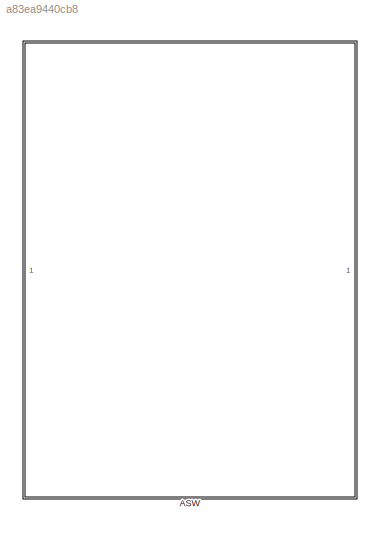
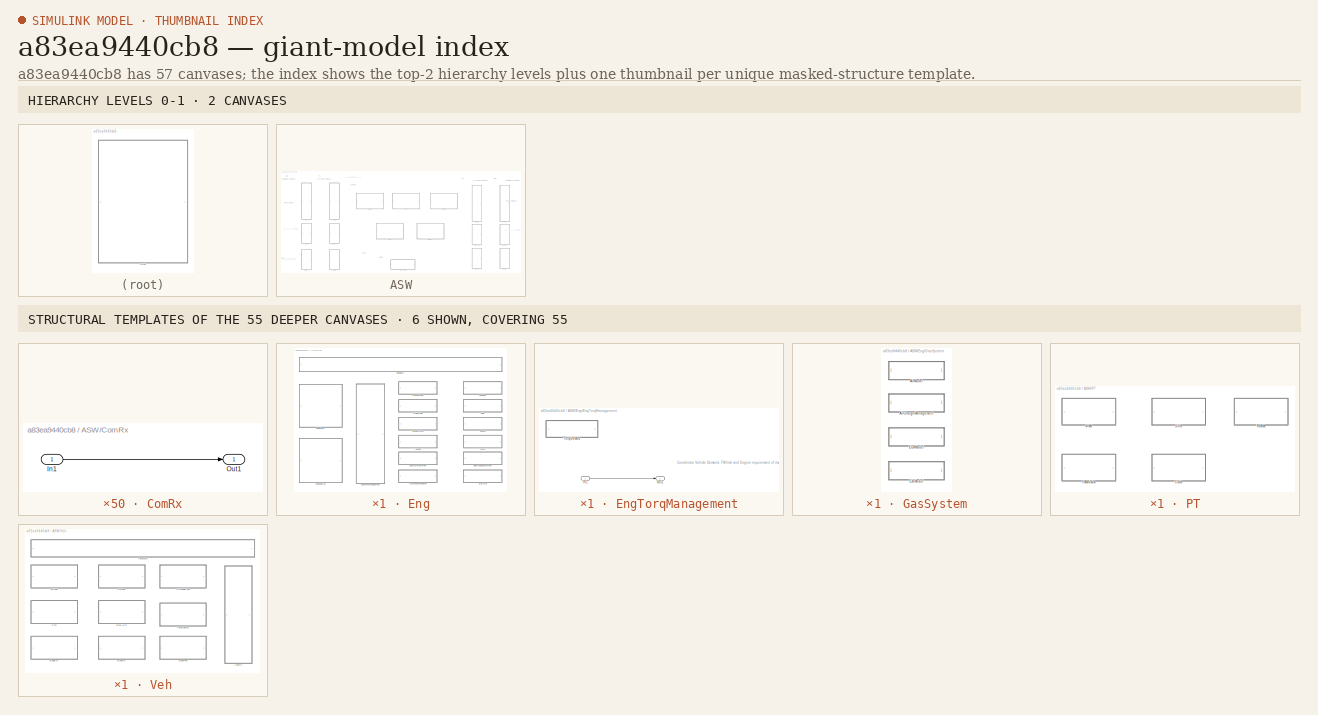
[diagram: thumbnail index - top-2 hierarchy levels (2 canvases) + 6 structural-template representatives of the remaining 55 canvases]
MODEL slx_a83ea9440cb8
KIND model
CONFIG AbsTol = auto
CONFIG EnableMultiTasking = on
CONFIG FixedStep = auto
CONFIG MaxStep = auto
CONFIG MinStep = auto
CONFIG RelTol = 1e-3
CONFIG SampleTimeConstraint = Unconstrained
CONFIG SolverName = VariableStepAuto
CONFIG StartTime = 0.0
CONFIG StopTime = 10.0
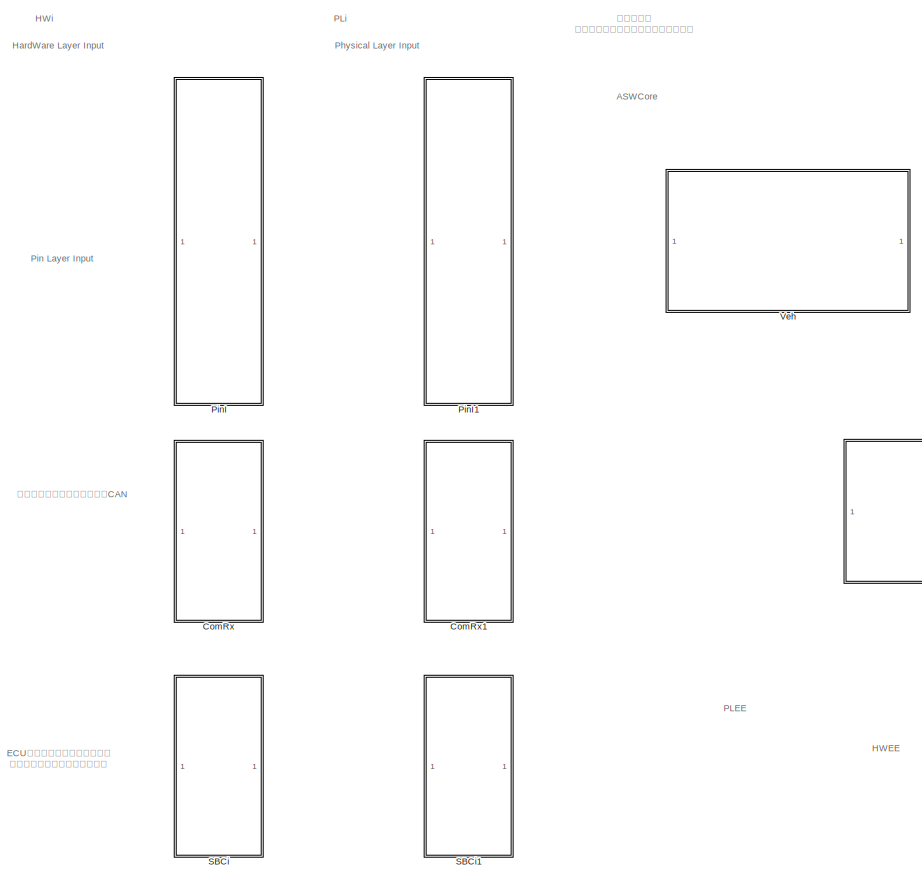
[diagram: ASW - part 1/2, left side, full height]
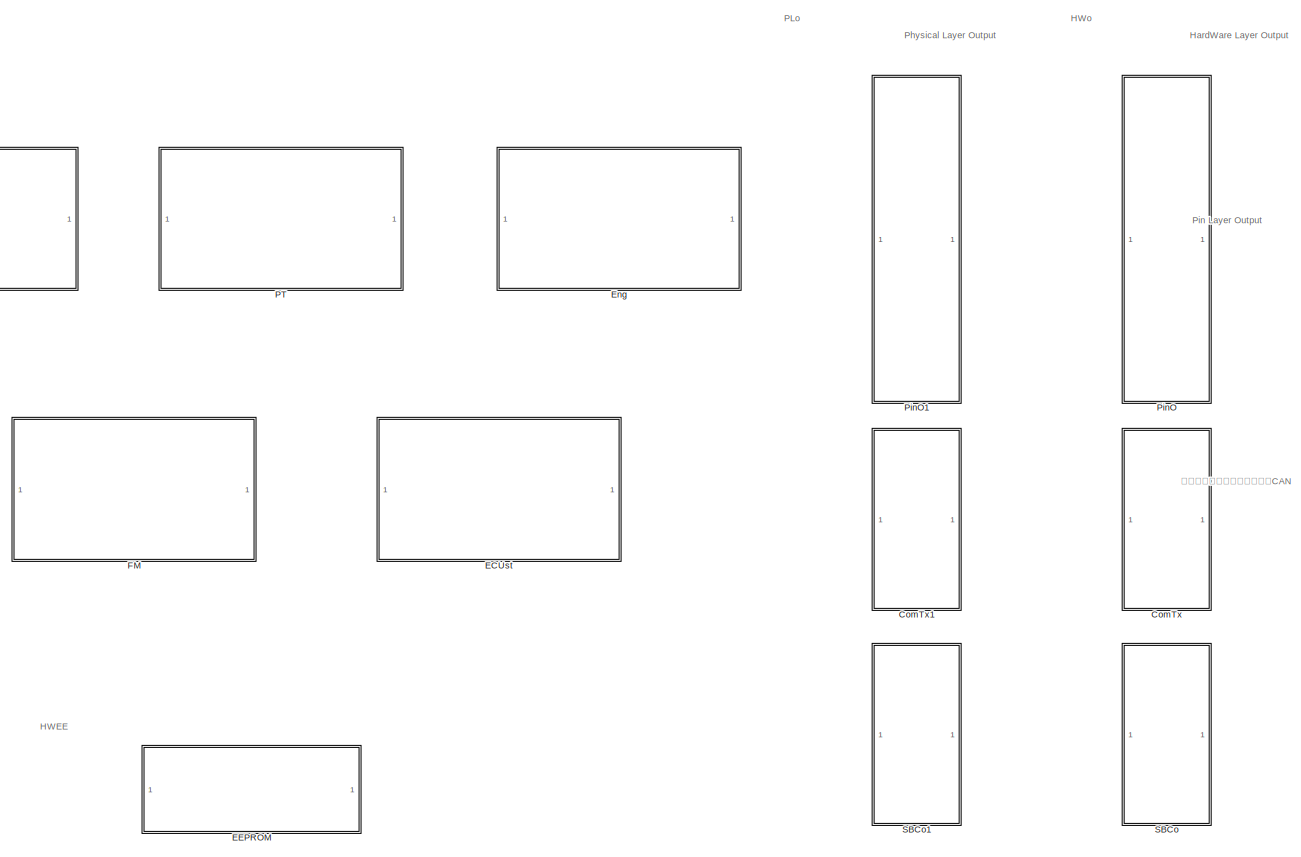
[diagram: ASW - part 2/2, right side, full height]
BLOCK [SubSystem] ASW
  Ports = []
  RequestExecContextInheritance = off
BLOCK [SubSystem] ASW/ComRx
  Ports = [1, 1]
  RequestExecContextInheritance = off
BLOCK [Inport] ASW/ComRx/In1
BLOCK [Outport] ASW/ComRx/Out1
  VectorParamsAs1DForOutWhenUnconnected = off
BLOCK [SubSystem] ASW/ComRx1
  Ports = [1, 1]
  RequestExecContextInheritance = off
BLOCK [Inport] ASW/ComRx1/In1
BLOCK [Outport] ASW/ComRx1/Out1
  VectorParamsAs1DForOutWhenUnconnected = off
BLOCK [SubSystem] ASW/ComTx
  Ports = [1, 1]
  RequestExecContextInheritance = off
BLOCK [Inport] ASW/ComTx/In1
BLOCK [Outport] ASW/ComTx/Out1
  VectorParamsAs1DForOutWhenUnconnected = off
BLOCK [SubSystem] ASW/ComTx1
  Ports = [1, 1]
  RequestExecContextInheritance = off
BLOCK [Inport] ASW/ComTx1/In1
BLOCK [Outport] ASW/ComTx1/Out1
  VectorParamsAs1DForOutWhenUnconnected = off
BLOCK [SubSystem] ASW/ECUst
  Ports = [1, 1]
  RequestExecContextInheritance = off
BLOCK [Inport] ASW/ECUst/In1
BLOCK [Outport] ASW/ECUst/Out1
  VectorParamsAs1DForOutWhenUnconnected = off
BLOCK [SubSystem] ASW/EEPROM
  Ports = [1, 1]
  RequestExecContextInheritance = off
BLOCK [Inport] ASW/EEPROM/In1
BLOCK [Outport] ASW/EEPROM/Out1
  VectorParamsAs1DForOutWhenUnconnected = off
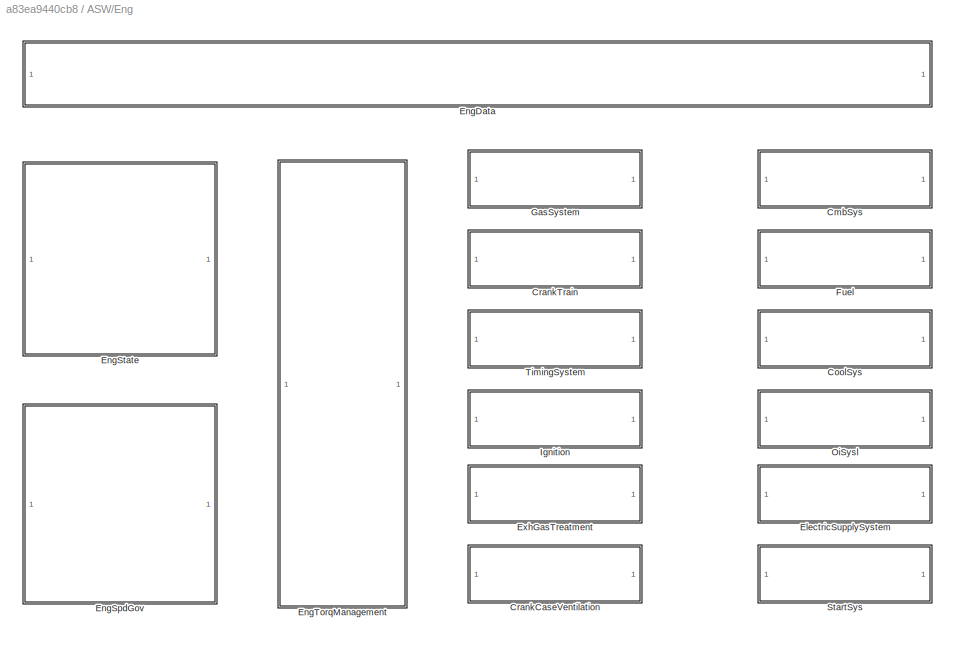
BLOCK [SubSystem] ASW/Eng
  Ports = []
  RequestExecContextInheritance = off
BLOCK [SubSystem] ASW/Eng/CmbSys
  Ports = [1, 1]
  RequestExecContextInheritance = off
BLOCK [Inport] ASW/Eng/CmbSys/In1
BLOCK [Outport] ASW/Eng/CmbSys/Out1
  VectorParamsAs1DForOutWhenUnconnected = off
BLOCK [SubSystem] ASW/Eng/CoolSys
  Ports = [1, 1]
  RequestExecContextInheritance = off
BLOCK [Inport] ASW/Eng/CoolSys/In1
BLOCK [Outport] ASW/Eng/CoolSys/Out1
  VectorParamsAs1DForOutWhenUnconnected = off
BLOCK [SubSystem] ASW/Eng/CrankCaseVentilation
  Ports = [1, 1]
  RequestExecContextInheritance = off
BLOCK [Inport] ASW/Eng/CrankCaseVentilation/In1
BLOCK [Outport] ASW/Eng/CrankCaseVentilation/Out1
  VectorParamsAs1DForOutWhenUnconnected = off
BLOCK [SubSystem] ASW/Eng/CrankTrain
  Ports = [1, 1]
  RequestExecContextInheritance = off
BLOCK [Inport] ASW/Eng/CrankTrain/In1
BLOCK [Outport] ASW/Eng/CrankTrain/Out1
  VectorParamsAs1DForOutWhenUnconnected = off
BLOCK [SubSystem] ASW/Eng/ElectricSupplySystem
  Ports = [1, 1]
  RequestExecContextInheritance = off
BLOCK [Inport] ASW/Eng/ElectricSupplySystem/In1
BLOCK [Outport] ASW/Eng/ElectricSupplySystem/Out1
  VectorParamsAs1DForOutWhenUnconnected = off
BLOCK [SubSystem] ASW/Eng/EngData
  Ports = [1, 1]
  RequestExecContextInheritance = off
BLOCK [Inport] ASW/Eng/EngData/In1
BLOCK [Outport] ASW/Eng/EngData/Out1
  VectorParamsAs1DForOutWhenUnconnected = off
BLOCK [SubSystem] ASW/Eng/EngSpdGov
  Ports = [1, 1]
  RequestExecContextInheritance = off
BLOCK [Inport] ASW/Eng/EngSpdGov/In1
BLOCK [Outport] ASW/Eng/EngSpdGov/Out1
  VectorParamsAs1DForOutWhenUnconnected = off
BLOCK [SubSystem] ASW/Eng/EngState
  Ports = [1, 1]
  RequestExecContextInheritance = off
BLOCK [Inport] ASW/Eng/EngState/In1
BLOCK [Outport] ASW/Eng/EngState/Out1
  VectorParamsAs1DForOutWhenUnconnected = off
BLOCK [SubSystem] ASW/Eng/EngTorqManagement
  Ports = [1, 1]
  RequestExecContextInheritance = off
BLOCK [Inport] ASW/Eng/EngTorqManagement/In1
BLOCK [Outport] ASW/Eng/EngTorqManagement/Out1
  VectorParamsAs1DForOutWhenUnconnected = off
BLOCK [SubSystem] ASW/Eng/EngTorqManagement/TorqueMod
  Ports = [1, 1]
  RequestExecContextInheritance = off
BLOCK [Inport] ASW/Eng/EngTorqManagement/TorqueMod/In1
BLOCK [Outport] ASW/Eng/EngTorqManagement/TorqueMod/Out1
  VectorParamsAs1DForOutWhenUnconnected = off
BLOCK [SubSystem] ASW/Eng/ExhGasTreatment
  Ports = [1, 1]
  RequestExecContextInheritance = off
BLOCK [Inport] ASW/Eng/ExhGasTreatment/In1
BLOCK [Outport] ASW/Eng/ExhGasTreatment/Out1
  VectorParamsAs1DForOutWhenUnconnected = off
BLOCK [SubSystem] ASW/Eng/Fuel
  Ports = [1, 1]
  RequestExecContextInheritance = off
BLOCK [Inport] ASW/Eng/Fuel/In1
BLOCK [Outport] ASW/Eng/Fuel/Out1
  VectorParamsAs1DForOutWhenUnconnected = off
BLOCK [SubSystem] ASW/Eng/GasSystem
  Ports = []
  RequestExecContextInheritance = off
BLOCK [SubSystem] ASW/Eng/GasSystem/AirChargeManagement
  Ports = [1, 1]
  RequestExecContextInheritance = off
BLOCK [Inport] ASW/Eng/GasSystem/AirChargeManagement/In1
BLOCK [Outport] ASW/Eng/GasSystem/AirChargeManagement/Out1
  VectorParamsAs1DForOutWhenUnconnected = off
BLOCK [SubSystem] ASW/Eng/GasSystem/AirModel
  Ports = [1, 1]
  RequestExecContextInheritance = off
BLOCK [Inport] ASW/Eng/GasSystem/AirModel/In1
BLOCK [Outport] ASW/Eng/GasSystem/AirModel/Out1
  VectorParamsAs1DForOutWhenUnconnected = off
BLOCK [SubSystem] ASW/Eng/GasSystem/EGRModel
  Ports = [1, 1]
  RequestExecContextInheritance = off
BLOCK [Inport] ASW/Eng/GasSystem/EGRModel/In1
BLOCK [Outport] ASW/Eng/GasSystem/EGRModel/Out1
  VectorParamsAs1DForOutWhenUnconnected = off
BLOCK [SubSystem] ASW/Eng/GasSystem/ExhModel
  Ports = [1, 1]
  RequestExecContextInheritance = off
BLOCK [Inport] ASW/Eng/GasSystem/ExhModel/In1
BLOCK [Outport] ASW/Eng/GasSystem/ExhModel/Out1
  VectorParamsAs1DForOutWhenUnconnected = off
BLOCK [SubSystem] ASW/Eng/Ignition
  Ports = [1, 1]
  RequestExecContextInheritance = off
BLOCK [Inport] ASW/Eng/Ignition/In1
BLOCK [Outport] ASW/Eng/Ignition/Out1
  VectorParamsAs1DForOutWhenUnconnected = off
BLOCK [SubSystem] ASW/Eng/OiSysl
  Ports = [1, 1]
  RequestExecContextInheritance = off
BLOCK [Inport] ASW/Eng/OiSysl/In1
BLOCK [Outport] ASW/Eng/OiSysl/Out1
  VectorParamsAs1DForOutWhenUnconnected = off
BLOCK [SubSystem] ASW/Eng/StartSys
  Ports = [1, 1]
  RequestExecContextInheritance = off
BLOCK [Inport] ASW/Eng/StartSys/In1
BLOCK [Outport] ASW/Eng/StartSys/Out1
  VectorParamsAs1DForOutWhenUnconnected = off
BLOCK [SubSystem] ASW/Eng/TimingSystem
  Ports = [1, 1]
  RequestExecContextInheritance = off
BLOCK [Inport] ASW/Eng/TimingSystem/In1
BLOCK [Outport] ASW/Eng/TimingSystem/Out1
  VectorParamsAs1DForOutWhenUnconnected = off
BLOCK [SubSystem] ASW/FM
  Ports = [1, 1]
  RequestExecContextInheritance = off
BLOCK [Inport] ASW/FM/In1
BLOCK [Outport] ASW/FM/Out1
  VectorParamsAs1DForOutWhenUnconnected = off
BLOCK [SubSystem] ASW/PT
  Ports = []
  RequestExecContextInheritance = off
BLOCK [SubSystem] ASW/PT/Clutch
  Ports = [1, 1]
  RequestExecContextInheritance = off
BLOCK [Inport] ASW/PT/Clutch/In1
BLOCK [Outport] ASW/PT/Clutch/Out1
  VectorParamsAs1DForOutWhenUnconnected = off
BLOCK [SubSystem] ASW/PT/Differ
  Ports = [1, 1]
  RequestExecContextInheritance = off
BLOCK [Inport] ASW/PT/Differ/In1
BLOCK [Outport] ASW/PT/Differ/Out1
  VectorParamsAs1DForOutWhenUnconnected = off
BLOCK [SubSystem] ASW/PT/Retarder
  Ports = [1, 1]
  RequestExecContextInheritance = off
BLOCK [Inport] ASW/PT/Retarder/In1
BLOCK [Outport] ASW/PT/Retarder/Out1
  VectorParamsAs1DForOutWhenUnconnected = off
BLOCK [SubSystem] ASW/PT/Transmission
  Ports = [1, 1]
  RequestExecContextInheritance = off
BLOCK [Inport] ASW/PT/Transmission/In1
BLOCK [Outport] ASW/PT/Transmission/Out1
  VectorParamsAs1DForOutWhenUnconnected = off
BLOCK [SubSystem] ASW/PT/Wheel
  Ports = [1, 1]
  RequestExecContextInheritance = off
BLOCK [Inport] ASW/PT/Wheel/In1
BLOCK [Outport] ASW/PT/Wheel/Out1
  VectorParamsAs1DForOutWhenUnconnected = off
BLOCK [SubSystem] ASW/PinI
  Ports = [1, 1]
  RequestExecContextInheritance = off
BLOCK [Inport] ASW/PinI/In1
BLOCK [Outport] ASW/PinI/Out1
  VectorParamsAs1DForOutWhenUnconnected = off
BLOCK [SubSystem] ASW/PinI1
  Ports = [1, 1]
  RequestExecContextInheritance = off
BLOCK [Inport] ASW/PinI1/In1
BLOCK [Outport] ASW/PinI1/Out1
  VectorParamsAs1DForOutWhenUnconnected = off
BLOCK [SubSystem] ASW/PinO
  Ports = [1, 1]
  RequestExecContextInheritance = off
BLOCK [Inport] ASW/PinO/In1
BLOCK [Outport] ASW/PinO/Out1
  VectorParamsAs1DForOutWhenUnconnected = off
BLOCK [SubSystem] ASW/PinO1
  Ports = [1, 1]
  RequestExecContextInheritance = off
BLOCK [Inport] ASW/PinO1/In1
BLOCK [Outport] ASW/PinO1/Out1
  VectorParamsAs1DForOutWhenUnconnected = off
BLOCK [SubSystem] ASW/SBCi
  Ports = [1, 1]
  RequestExecContextInheritance = off
BLOCK [Inport] ASW/SBCi/In1
BLOCK [Outport] ASW/SBCi/Out1
  VectorParamsAs1DForOutWhenUnconnected = off
BLOCK [SubSystem] ASW/SBCi1
  Ports = [1, 1]
  RequestExecContextInheritance = off
BLOCK [Inport] ASW/SBCi1/In1
BLOCK [Outport] ASW/SBCi1/Out1
  VectorParamsAs1DForOutWhenUnconnected = off
BLOCK [SubSystem] ASW/SBCo
  Ports = [1, 1]
  RequestExecContextInheritance = off
BLOCK [Inport] ASW/SBCo/In1
BLOCK [Outport] ASW/SBCo/Out1
  VectorParamsAs1DForOutWhenUnconnected = off
BLOCK [SubSystem] ASW/SBCo1
  Ports = [1, 1]
  RequestExecContextInheritance = off
BLOCK [Inport] ASW/SBCo1/In1
BLOCK [Outport] ASW/SBCo1/Out1
  VectorParamsAs1DForOutWhenUnconnected = off
BLOCK [SubSystem] ASW/Veh
  Ports = []
  RequestExecContextInheritance = off
BLOCK [SubSystem] ASW/Veh/AirCondition
  Ports = [1, 1]
  RequestExecContextInheritance = off
BLOCK [Inport] ASW/Veh/AirCondition/In1
BLOCK [Outport] ASW/Veh/AirCondition/Out1
  VectorParamsAs1DForOutWhenUnconnected = off
BLOCK [SubSystem] ASW/Veh/Cruise
  Ports = [1, 1]
  RequestExecContextInheritance = off
BLOCK [Inport] ASW/Veh/Cruise/In1
BLOCK [Outport] ASW/Veh/Cruise/Out1
  VectorParamsAs1DForOutWhenUnconnected = off
BLOCK [SubSystem] ASW/Veh/Driver
  Ports = [1, 1]
  RequestExecContextInheritance = off
BLOCK [Inport] ASW/Veh/Driver/In1
BLOCK [Outport] ASW/Veh/Driver/Out1
  VectorParamsAs1DForOutWhenUnconnected = off
BLOCK [SubSystem] ASW/Veh/EngBrk
  Ports = [1, 1]
  RequestExecContextInheritance = off
BLOCK [Inport] ASW/Veh/EngBrk/In1
BLOCK [Outport] ASW/Veh/EngBrk/Out1
  VectorParamsAs1DForOutWhenUnconnected = off
BLOCK [SubSystem] ASW/Veh/ExhBrk
  Ports = [1, 1]
  RequestExecContextInheritance = off
BLOCK [Inport] ASW/Veh/ExhBrk/In1
BLOCK [Outport] ASW/Veh/ExhBrk/Out1
  VectorParamsAs1DForOutWhenUnconnected = off
BLOCK [SubSystem] ASW/Veh/PTO
  Ports = [1, 1]
  RequestExecContextInheritance = off
BLOCK [Inport] ASW/Veh/PTO/In1
BLOCK [Outport] ASW/Veh/PTO/Out1
  VectorParamsAs1DForOutWhenUnconnected = off
BLOCK [SubSystem] ASW/Veh/RmtAPP
  Ports = [1, 1]
  RequestExecContextInheritance = off
BLOCK [Inport] ASW/Veh/RmtAPP/In1
BLOCK [Outport] ASW/Veh/RmtAPP/Out1
  VectorParamsAs1DForOutWhenUnconnected = off
BLOCK [SubSystem] ASW/Veh/SpdDem
  Ports = [1, 1]
  RequestExecContextInheritance = off
BLOCK [Inport] ASW/Veh/SpdDem/In1
BLOCK [Outport] ASW/Veh/SpdDem/Out1
  VectorParamsAs1DForOutWhenUnconnected = off
BLOCK [SubSystem] ASW/Veh/VehCo
  Ports = [1, 1]
  RequestExecContextInheritance = off
BLOCK [Inport] ASW/Veh/VehCo/In1
BLOCK [Outport] ASW/Veh/VehCo/Out1
  VectorParamsAs1DForOutWhenUnconnected = off
BLOCK [SubSystem] ASW/Veh/VehData
  Ports = [1, 1]
  RequestExecContextInheritance = off
BLOCK [Inport] ASW/Veh/VehData/In1
BLOCK [Outport] ASW/Veh/VehData/Out1
  VectorParamsAs1DForOutWhenUnconnected = off
BLOCK [SubSystem] ASW/Veh/VehSpdLim
  Ports = [1, 1]
  RequestExecContextInheritance = off
BLOCK [Inport] ASW/Veh/VehSpdLim/In1
BLOCK [Outport] ASW/Veh/VehSpdLim/Out1
  VectorParamsAs1DForOutWhenUnconnected = off
ANNOTATION ASW: Pin Layer Input
ANNOTATION ASW: Pin Layer Output
ANNOTATION ASW: 外部总线上传过来的信息，如CAN
ANNOTATION ASW: 往外部总线上发送的信息，如CAN
ANNOTATION ASW: ECU内部总线上传过来的信息； 外设芯片反馈过来的故障等信息
ANNOTATION ASW: ASWCore
ANNOTATION ASW: HWEE
ANNOTATION ASW: HWi
ANNOTATION ASW: HWo
ANNOTATION ASW: HardWare Layer Input
ANNOTATION ASW: HardWare Layer Output
ANNOTATION ASW: PLEE
ANNOTATION ASW: PLi
ANNOTATION ASW: PLo
ANNOTATION ASW: Physical Layer Input
ANNOTATION ASW: Physical Layer Output
ANNOTATION ASW: 应用层模型 应用层软件和底层软件之间的接口定义
ANNOTATION ASW/Eng/CmbSys: All of the demand comes from here: air pressure demand, injection quantity and injection time; smoke limit
ANNOTATION ASW/Eng/EngTorqManagement: Coordinate Vehicle Demand, FM limit and Engine requirement of itself
ANNOTATION ASW/Eng/EngTorqManagement/TorqueMod: Torque Model: Main Quantity Calculation
ANNOTATION ASW/Veh/VehCo: Coordinate all of the Torque demand and Speed demand for Engine
LINE ASW/ComRx/In1:1 -> ASW/ComRx/Out1:1
LINE ASW/ComRx1/In1:1 -> ASW/ComRx1/Out1:1
LINE ASW/ComTx/In1:1 -> ASW/ComTx/Out1:1
LINE ASW/ComTx1/In1:1 -> ASW/ComTx1/Out1:1
LINE ASW/ECUst/In1:1 -> ASW/ECUst/Out1:1
LINE ASW/EEPROM/In1:1 -> ASW/EEPROM/Out1:1
LINE ASW/Eng/CmbSys/In1:1 -> ASW/Eng/CmbSys/Out1:1
LINE ASW/Eng/CoolSys/In1:1 -> ASW/Eng/CoolSys/Out1:1
LINE ASW/Eng/CrankCaseVentilation/In1:1 -> ASW/Eng/CrankCaseVentilation/Out1:1
LINE ASW/Eng/CrankTrain/In1:1 -> ASW/Eng/CrankTrain/Out1:1
LINE ASW/Eng/ElectricSupplySystem/In1:1 -> ASW/Eng/ElectricSupplySystem/Out1:1
LINE ASW/Eng/EngData/In1:1 -> ASW/Eng/EngData/Out1:1
LINE ASW/Eng/EngSpdGov/In1:1 -> ASW/Eng/EngSpdGov/Out1:1
LINE ASW/Eng/EngState/In1:1 -> ASW/Eng/EngState/Out1:1
LINE ASW/Eng/EngTorqManagement/In1:1 -> ASW/Eng/EngTorqManagement/Out1:1
LINE ASW/Eng/EngTorqManagement/TorqueMod/In1:1 -> ASW/Eng/EngTorqManagement/TorqueMod/Out1:1
LINE ASW/Eng/ExhGasTreatment/In1:1 -> ASW/Eng/ExhGasTreatment/Out1:1
LINE ASW/Eng/Fuel/In1:1 -> ASW/Eng/Fuel/Out1:1
LINE ASW/Eng/GasSystem/AirChargeManagement/In1:1 -> ASW/Eng/GasSystem/AirChargeManagement/Out1:1
LINE ASW/Eng/GasSystem/AirModel/In1:1 -> ASW/Eng/GasSystem/AirModel/Out1:1
LINE ASW/Eng/GasSystem/EGRModel/In1:1 -> ASW/Eng/GasSystem/EGRModel/Out1:1
LINE ASW/Eng/GasSystem/ExhModel/In1:1 -> ASW/Eng/GasSystem/ExhModel/Out1:1
LINE ASW/Eng/Ignition/In1:1 -> ASW/Eng/Ignition/Out1:1
LINE ASW/Eng/OiSysl/In1:1 -> ASW/Eng/OiSysl/Out1:1
LINE ASW/Eng/StartSys/In1:1 -> ASW/Eng/StartSys/Out1:1
LINE ASW/Eng/TimingSystem/In1:1 -> ASW/Eng/TimingSystem/Out1:1
LINE ASW/FM/In1:1 -> ASW/FM/Out1:1
LINE ASW/PT/Clutch/In1:1 -> ASW/PT/Clutch/Out1:1
LINE ASW/PT/Differ/In1:1 -> ASW/PT/Differ/Out1:1
LINE ASW/PT/Retarder/In1:1 -> ASW/PT/Retarder/Out1:1
LINE ASW/PT/Transmission/In1:1 -> ASW/PT/Transmission/Out1:1
LINE ASW/PT/Wheel/In1:1 -> ASW/PT/Wheel/Out1:1
LINE ASW/PinI/In1:1 -> ASW/PinI/Out1:1
LINE ASW/PinI1/In1:1 -> ASW/PinI1/Out1:1
LINE ASW/PinO/In1:1 -> ASW/PinO/Out1:1
LINE ASW/PinO1/In1:1 -> ASW/PinO1/Out1:1
LINE ASW/SBCi/In1:1 -> ASW/SBCi/Out1:1
LINE ASW/SBCi1/In1:1 -> ASW/SBCi1/Out1:1
LINE ASW/SBCo/In1:1 -> ASW/SBCo/Out1:1
LINE ASW/SBCo1/In1:1 -> ASW/SBCo1/Out1:1
LINE ASW/Veh/AirCondition/In1:1 -> ASW/Veh/AirCondition/Out1:1
LINE ASW/Veh/Cruise/In1:1 -> ASW/Veh/Cruise/Out1:1
LINE ASW/Veh/Driver/In1:1 -> ASW/Veh/Driver/Out1:1
LINE ASW/Veh/EngBrk/In1:1 -> ASW/Veh/EngBrk/Out1:1
LINE ASW/Veh/ExhBrk/In1:1 -> ASW/Veh/ExhBrk/Out1:1
LINE ASW/Veh/PTO/In1:1 -> ASW/Veh/PTO/Out1:1
LINE ASW/Veh/RmtAPP/In1:1 -> ASW/Veh/RmtAPP/Out1:1
LINE ASW/Veh/SpdDem/In1:1 -> ASW/Veh/SpdDem/Out1:1
LINE ASW/Veh/VehCo/In1:1 -> ASW/Veh/VehCo/Out1:1
LINE ASW/Veh/VehData/In1:1 -> ASW/Veh/VehData/Out1:1
LINE ASW/Veh/VehSpdLim/In1:1 -> ASW/Veh/VehSpdLim/Out1:1
